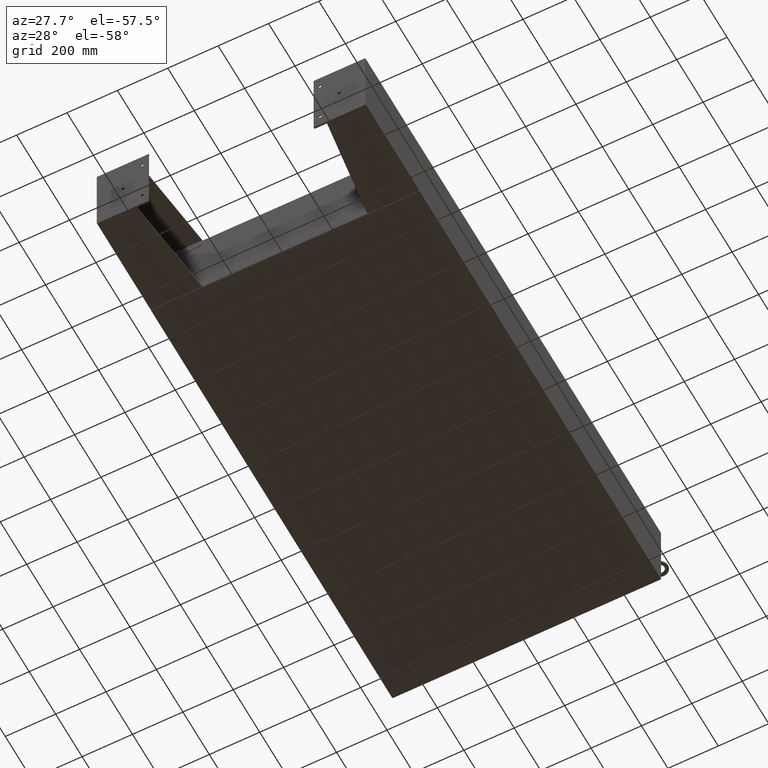
[diagram: clean part render]
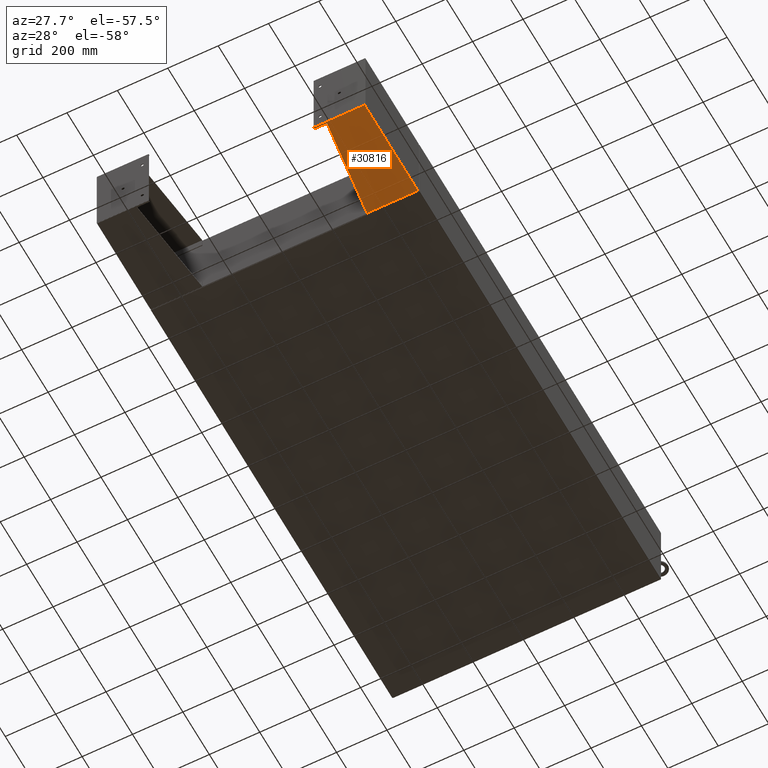
[diagram: same view with one face highlighted and labeled with its STEP entity id]
A machine part, auxiliary view. The second image highlights one B-rep face of the part: STEP entity #30816.
In plain terms, the highlighted planar face has unit normal (-0, 0, 1).
Its self-contained STEP definition (entity closure, byte-faithful):
#785 = LINE ( 'NONE', #24023, #12009 ) ;
#1313 = ORIENTED_EDGE ( 'NONE', *, *, #22484, .T. ) ;
#1901 = CARTESIAN_POINT ( 'NONE',  ( -6.000000000000000900, 8.000000000000001800, 0.03899999999999923000 ) ) ;
#4326 = CARTESIAN_POINT ( 'NONE',  ( -6.000000000000000900, -7.999999999999999100, 0.03899999999999923000 ) ) ;
#4840 = VERTEX_POINT ( 'NONE', #45291 ) ;
#5053 = EDGE_LOOP ( 'NONE', ( #24595, #29045, #1313, #66550, #49302, #34704 ) ) ;
#6911 = EDGE_CURVE ( 'NONE', #19614, #4840, #56910, .T. ) ;
#7637 = LINE ( 'NONE', #1901, #35195 ) ;
#10625 = VERTEX_POINT ( 'NONE', #66201 ) ;
#10816 = EDGE_CURVE ( 'NONE', #10625, #55119, #21049, .T. ) ;
#12009 = VECTOR ( 'NONE', #46296, 39.37007874015748100 ) ;
#12206 = EDGE_CURVE ( 'NONE', #52256, #10625, #34572, .T. ) ;
#16203 = CARTESIAN_POINT ( 'NONE',  ( -6.000000000000030200, 8.000000000000001800, 8.000999999999999400 ) ) ;
#16563 = VECTOR ( 'NONE', #42284, 39.37007874015748100 ) ;
#19380 = VECTOR ( 'NONE', #20545, 39.37007874015748100 ) ;
#19614 = VERTEX_POINT ( 'NONE', #4326 ) ;
#20545 = DIRECTION ( 'NONE',  ( -4.399772607369798900E-016, 0.9922942345449394800, 0.1239038017531047700 ) ) ;
#21049 = LINE ( 'NONE', #29755, #19380 ) ;
#21477 = DIRECTION ( 'NONE',  ( 1.000000000000000000, 0.0000000000000000000, 3.550958521948298200E-015 ) ) ;
#21572 = DIRECTION ( 'NONE',  ( 0.0000000000000000000, 1.000000000000000000, 0.0000000000000000000 ) ) ;
#21645 = CARTESIAN_POINT ( 'NONE',  ( -6.000000000000030200, -7.999999999999999100, 8.000999999999999400 ) ) ;
#22484 = EDGE_CURVE ( 'NONE', #55119, #56311, #785, .T. ) ;
#23431 = CARTESIAN_POINT ( 'NONE',  ( -6.000000000000030200, 7.857000000000001100, 8.000999999999999400 ) ) ;
#24023 = CARTESIAN_POINT ( 'NONE',  ( -6.000000000000016000, 7.857000000000001100, 8.000999999999999400 ) ) ;
#24595 = ORIENTED_EDGE ( 'NONE', *, *, #12206, .T. ) ;
#24933 = VECTOR ( 'NONE', #21572, 39.37007874015748100 ) ;
#27949 = CARTESIAN_POINT ( 'NONE',  ( -6.000000000000030200, -7.750000000000000000, 8.001000000000015400 ) ) ;
#29045 = ORIENTED_EDGE ( 'NONE', *, *, #10816, .T. ) ;
#29512 = CARTESIAN_POINT ( 'NONE',  ( -6.000000000000016000, 7.857000000000001100, 0.03900000000000031900 ) ) ;
#29755 = CARTESIAN_POINT ( 'NONE',  ( -6.000000000000023100, -7.749999999999999100, 6.052216497445934700 ) ) ;
#30816 = ADVANCED_FACE ( 'NONE', ( #68942 ), #54388, .F. ) ;
#31861 = EDGE_CURVE ( 'NONE', #4840, #52256, #54211, .T. ) ;
#34572 = LINE ( 'NONE', #42563, #16563 ) ;
#34704 = ORIENTED_EDGE ( 'NONE', *, *, #31861, .T. ) ;
#35195 = VECTOR ( 'NONE', #40383, 39.37007874015748100 ) ;
#37811 = DIRECTION ( 'NONE',  ( -3.550958521948298200E-015, 0.0000000000000000000, 1.000000000000000000 ) ) ;
#40383 = DIRECTION ( 'NONE',  ( 0.0000000000000000000, 1.000000000000000000, 0.0000000000000000000 ) ) ;
#42284 = DIRECTION ( 'NONE',  ( 3.550958521948298200E-015, 0.0000000000000000000, -1.000000000000000000 ) ) ;
#42563 = CARTESIAN_POINT ( 'NONE',  ( -6.000000000000030200, -7.750000000000000000, 8.000999999999999400 ) ) ;
#43062 = EDGE_CURVE ( 'NONE', #19614, #56311, #7637, .T. ) ;
#43398 = CARTESIAN_POINT ( 'NONE',  ( -6.000000000000030200, 8.000000000000001800, 8.000999999999999400 ) ) ;
#45291 = CARTESIAN_POINT ( 'NONE',  ( -6.000000000000030200, -7.999999999999999100, 8.000999999999999400 ) ) ;
#46296 = DIRECTION ( 'NONE',  ( 0.0000000000000000000, 0.0000000000000000000, -1.000000000000000000 ) ) ;
#49302 = ORIENTED_EDGE ( 'NONE', *, *, #6911, .T. ) ;
#52256 = VERTEX_POINT ( 'NONE', #27949 ) ;
#54211 = LINE ( 'NONE', #16203, #24933 ) ;
#54388 = PLANE ( 'NONE',  #70589 ) ;
#55119 = VERTEX_POINT ( 'NONE', #23431 ) ;
#55199 = VECTOR ( 'NONE', #37811, 39.37007874015748100 ) ;
#56311 = VERTEX_POINT ( 'NONE', #29512 ) ;
#56910 = LINE ( 'NONE', #21645, #55199 ) ;
#59903 = DIRECTION ( 'NONE',  ( 3.550958521948298200E-015, 0.0000000000000000000, -1.000000000000000000 ) ) ;
#66201 = CARTESIAN_POINT ( 'NONE',  ( -6.000000000000022200, -7.750000000000000000, 6.052216497445934700 ) ) ;
#66550 = ORIENTED_EDGE ( 'NONE', *, *, #43062, .F. ) ;
#68942 = FACE_OUTER_BOUND ( 'NONE', #5053, .T. ) ;
#70589 = AXIS2_PLACEMENT_3D ( 'NONE', #43398, #21477, #59903 ) ;